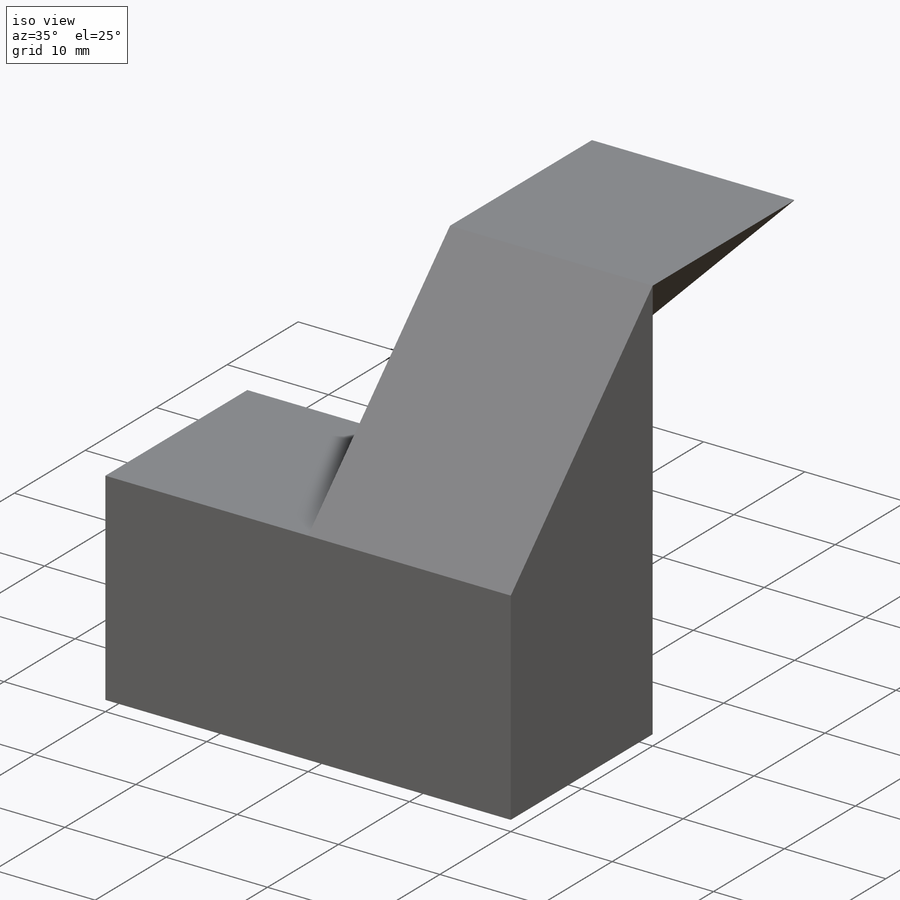
[diagram: iso view]
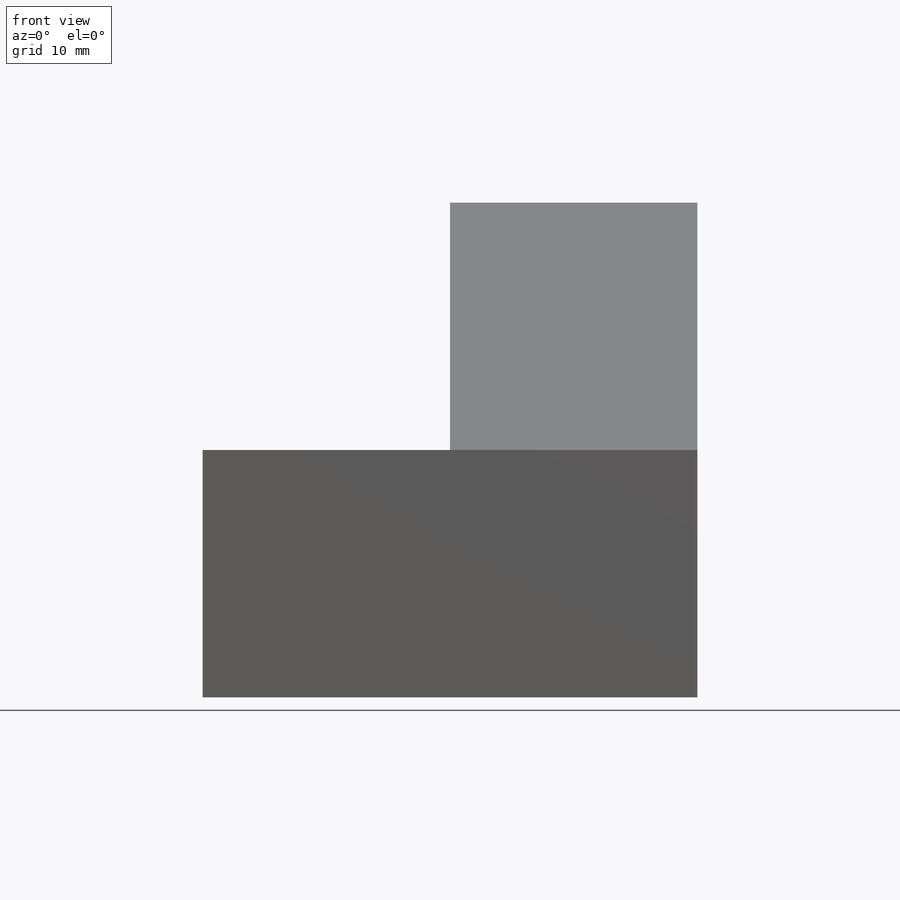
[diagram: front view]
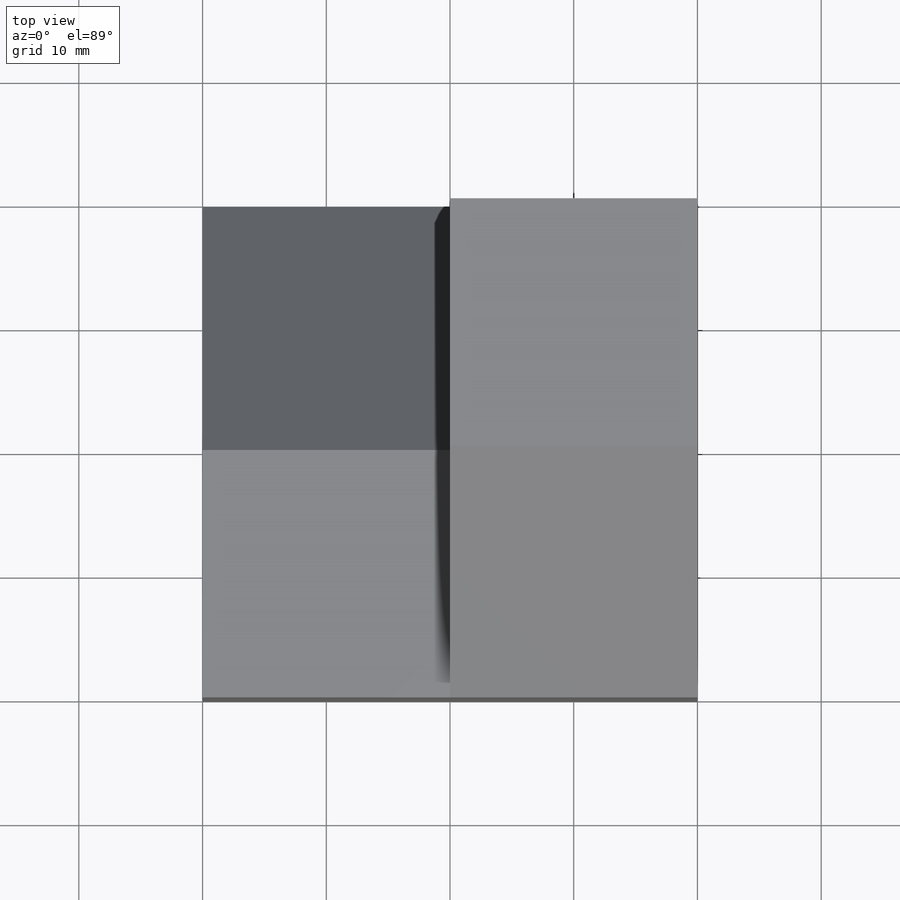
[diagram: top view]
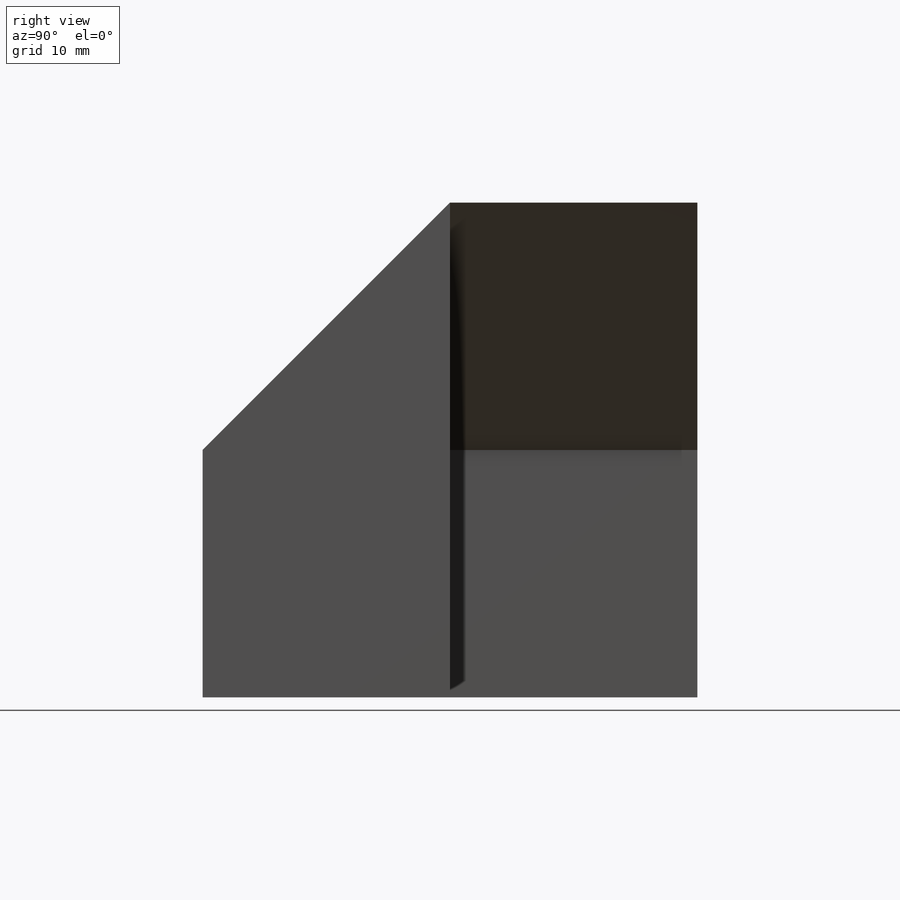
[diagram: right view]
SOLIDWORKS PART (.sldprt)
format: sldprt  version: not decoded by parser v0  size: 210,944 bytes
history: native  units: mm
features: sketch x9, cut_extrude x8, material x1, extrude x1 (+13 scaffold rows collapsed)
feature tree (32):
  scaffold x13  (default folders/planes/origin — collapsed)
  material  "Material <not specified>"
  sketch  "Sketch1"  dims[c1.D1=~51.000936mm c1.D2=~66.119791mm c2.D1=40.0mm c2.D2=40.0mm]
  extrude  "Boss-Extrude1"  Depth=40mm
  sketch  "Sketch2"  dims[c1.D1=20.0mm c1.D2=~19.084091mm c2.D1=20.0mm c2.D2=20.0mm]
  cut_extrude  "Cut-Extrude1"  Depth=40mm
  sketch  "Sketch3"  dims[D1=20.0mm]
  cut_extrude  "Cut-Extrude2"  Depth=40mm
  sketch  "Sketch4"  dims[c1.D1=~17.500448mm c1.D2=~20.164833mm c2.D1=20.0mm c2.D2=20.0mm]
  cut_extrude  "Cut-Extrude4"  Depth=19.999mm
  sketch  "Sketch5"  dims[D1=19.998mm D2=0.001mm D3=0.0001mm D4=0.0001mm]
  cut_extrude  "Cut-Extrude6"  Depth=19.999mm
  sketch  "Sketch6"  dims[D1=20.0mm]
  cut_extrude  "Cut-Extrude7"  Depth=19.999mm
  sketch  "Sketch7"  dims[D1=19.999mm D2=19.9999mm]
  cut_extrude  "Cut-Extrude8"  Depth=19.999mm
  sketch  "Sketch8"  dims[D1=20.0mm]
  cut_extrude  "Cut-Extrude9"  Depth=19.999mm
  sketch  "Sketch9"  dims[D1=~28.284271mm]
  cut_extrude  "Cut-Extrude10"  Depth=0.0001mm
decode coverage: 18 of 18 modeling features carry decoded parameters
note: ~ marks probable driven/reference dimensions
note: suppression state not decoded; provenance and decode notes live in map.json
